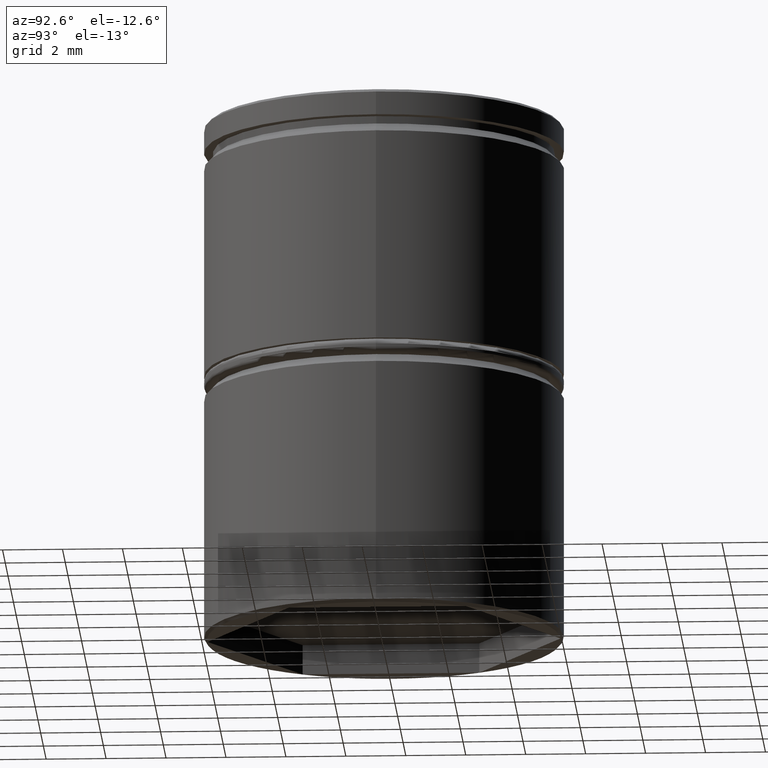
[diagram: clean part render]
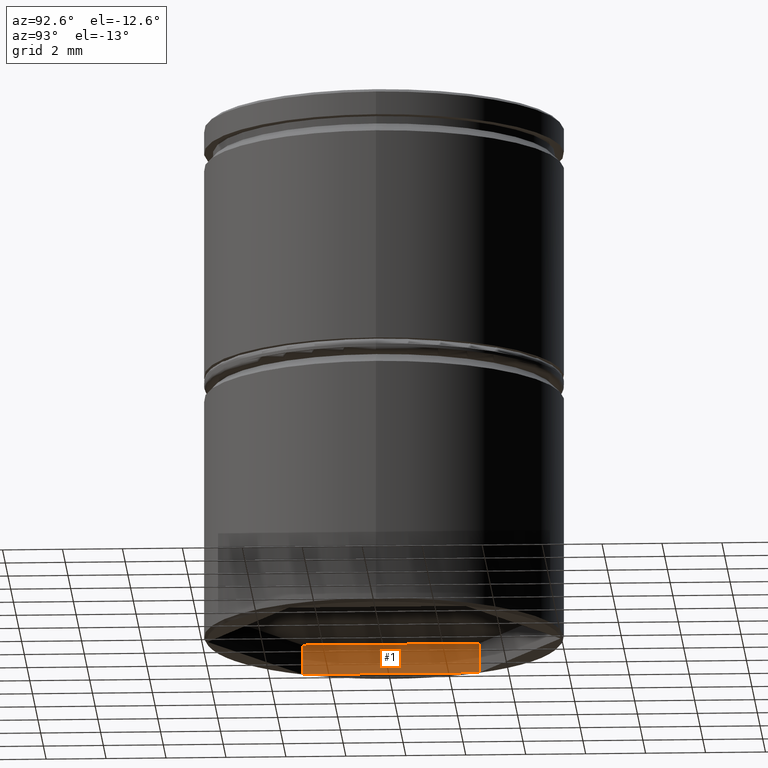
[diagram: same view with one face highlighted and labeled with its STEP entity id]
A machine part, auxiliary view. The second image highlights one B-rep face of the part: STEP entity #1.
In plain terms, the highlighted planar face has unit normal (-1, 0, 0).
Its self-contained STEP definition (entity closure, byte-faithful):
#1 = ADVANCED_FACE ( 'NONE', ( #1003 ), #600, .F. ) ;
#22 = VERTEX_POINT ( 'NONE', #66 ) ;
#66 = CARTESIAN_POINT ( 'NONE',  ( -5.100000000000000533, -2.944486372867089585, -17.50000000000000000 ) ) ;
#116 = VECTOR ( 'NONE', #504, 1000.000000000000000 ) ;
#190 = VERTEX_POINT ( 'NONE', #446 ) ;
#194 = VERTEX_POINT ( 'NONE', #606 ) ;
#195 = VECTOR ( 'NONE', #824, 1000.000000000000000 ) ;
#203 = LINE ( 'NONE', #744, #195 ) ;
#216 = DIRECTION ( 'NONE',  ( -1.000000000000000000, 0.000000000000000000, 0.000000000000000000 ) ) ;
#249 = CARTESIAN_POINT ( 'NONE',  ( -5.100000000000000533, -2.944486372867089585, -16.50000000000000000 ) ) ;
#293 = CARTESIAN_POINT ( 'NONE',  ( -5.100000000000000533, -2.944486372867089585, -16.50000000000000000 ) ) ;
#306 = CARTESIAN_POINT ( 'NONE',  ( -5.100000000000000533, -2.944486372867089585, -17.50000000000000000 ) ) ;
#332 = LINE ( 'NONE', #306, #791 ) ;
#387 = LINE ( 'NONE', #249, #632 ) ;
#414 = CARTESIAN_POINT ( 'NONE',  ( -5.100000000000000533, -2.944486372867089585, -16.50000000000000000 ) ) ;
#440 = ORIENTED_EDGE ( 'NONE', *, *, #963, .F. ) ;
#446 = CARTESIAN_POINT ( 'NONE',  ( -5.100000000000000533, 2.944486372867091806, -16.50000000000000000 ) ) ;
#459 = EDGE_CURVE ( 'NONE', #190, #194, #203, .T. ) ;
#504 = DIRECTION ( 'NONE',  ( 0.000000000000000000, 1.000000000000000000, 0.000000000000000000 ) ) ;
#550 = AXIS2_PLACEMENT_3D ( 'NONE', #293, #216, #913 ) ;
#571 = ORIENTED_EDGE ( 'NONE', *, *, #657, .T. ) ;
#583 = LINE ( 'NONE', #904, #116 ) ;
#600 = PLANE ( 'NONE',  #550 ) ;
#606 = CARTESIAN_POINT ( 'NONE',  ( -5.100000000000000533, 2.944486372867091806, -17.50000000000000000 ) ) ;
#619 = ORIENTED_EDGE ( 'NONE', *, *, #459, .F. ) ;
#632 = VECTOR ( 'NONE', #719, 1000.000000000000000 ) ;
#633 = DIRECTION ( 'NONE',  ( 0.000000000000000000, 1.000000000000000000, 0.000000000000000000 ) ) ;
#639 = EDGE_CURVE ( 'NONE', #22, #194, #332, .T. ) ;
#657 = EDGE_CURVE ( 'NONE', #945, #22, #387, .T. ) ;
#719 = DIRECTION ( 'NONE',  ( -0.000000000000000000, -0.000000000000000000, -1.000000000000000000 ) ) ;
#736 = EDGE_LOOP ( 'NONE', ( #925, #619, #440, #571 ) ) ;
#744 = CARTESIAN_POINT ( 'NONE',  ( -5.100000000000000533, 2.944486372867091806, -16.50000000000000000 ) ) ;
#791 = VECTOR ( 'NONE', #633, 1000.000000000000000 ) ;
#824 = DIRECTION ( 'NONE',  ( -0.000000000000000000, -0.000000000000000000, -1.000000000000000000 ) ) ;
#904 = CARTESIAN_POINT ( 'NONE',  ( -5.100000000000000533, -2.944486372867089585, -16.50000000000000000 ) ) ;
#913 = DIRECTION ( 'NONE',  ( 0.000000000000000000, 0.000000000000000000, 1.000000000000000000 ) ) ;
#925 = ORIENTED_EDGE ( 'NONE', *, *, #639, .T. ) ;
#945 = VERTEX_POINT ( 'NONE', #414 ) ;
#963 = EDGE_CURVE ( 'NONE', #945, #190, #583, .T. ) ;
#1003 = FACE_OUTER_BOUND ( 'NONE', #736, .T. ) ;